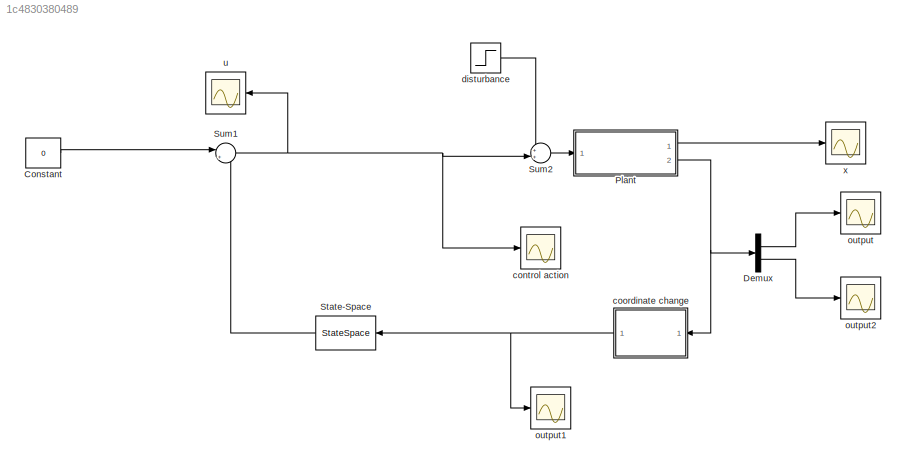
MODEL slx_1c4830380489
KIND model
CONFIG AbsTol = auto
CONFIG EnableMultiTasking = off
CONFIG FixedStep = auto
CONFIG MaxStep = auto
CONFIG MinStep = auto
CONFIG RelTol = 1e-3
CONFIG SampleTimeConstraint = Unconstrained
CONFIG Solver = VariableStepAuto
CONFIG SolverName = VariableStepAuto
CONFIG StartTime = 0.0
CONFIG StopTime = 10
BLOCK [Constant] Constant
  Value = 0
BLOCK [Demux] Demux
  DisplayOption = bar
  Outputs = 2
  Ports = [1, 2]
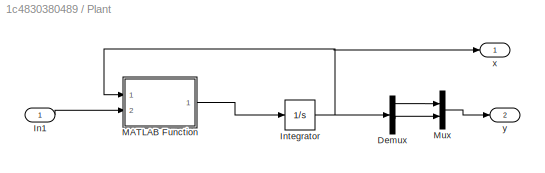
BLOCK [SubSystem] Plant
  Ports = [1, 2]
  RequestExecContextInheritance = off
  Variant = off
BLOCK [Demux] Plant/Demux
  DisplayOption = bar
  Ports = [1, 4]
BLOCK [Inport] Plant/In1
  IconDisplay = Port number
BLOCK [Integrator] Plant/Integrator
  InitialCondition = x0
  Ports = [1, 1]
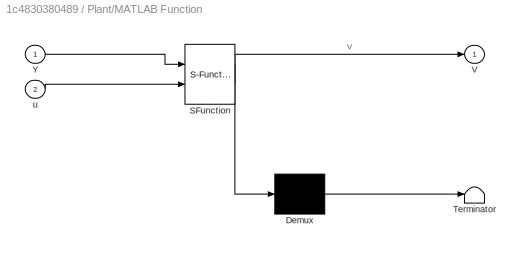
BLOCK [SubSystem] Plant/MATLAB Function
  ErrorFcn = Stateflow.Translate.translate
  PermitHierarchicalResolution = ExplicitOnly
  Ports = [2, 1]
  RequestExecContextInheritance = off
  SFBlockType = MATLAB Function
  TreatAsAtomicUnit = on
  Variant = off
BLOCK [Demux] Plant/MATLAB Function/ Demux 
  Outputs = 1
  Ports = [1, 1]
BLOCK [S-Function] Plant/MATLAB Function/ SFunction 
  EnableBusSupport = on
  FunctionName = sf_sfun
  PortCounts = [2 2]
  Ports = [2, 2]
  SFcnIsStateOwnerBlock = off
  SFunctionDeploymentMode = off
  Tag = Stateflow S-Function hinfcontroller2 2
BLOCK [Terminator] Plant/MATLAB Function/ Terminator 
BLOCK [Outport] Plant/MATLAB Function/V
  IconDisplay = Port number
BLOCK [Inport] Plant/MATLAB Function/Y
  IconDisplay = Port number
BLOCK [Inport] Plant/MATLAB Function/u
  IconDisplay = Port number
  Port = 2
BLOCK [Mux] Plant/Mux
  DisplayOption = bar
  Inputs = 2
  Ports = [2, 1]
BLOCK [Outport] Plant/x
  IconDisplay = Port number
BLOCK [Outport] Plant/y
  IconDisplay = Port number
  Port = 2
BLOCK [StateSpace] State-Space
  A = Ak
  B = Bk
  C = Ck
  D = Dk
  Ports = [1, 1]
  X0 = 0
BLOCK [Sum] Sum1
  IconShape = round
  InputSameDT = off
  Inputs = |+-
  OutDataTypeStr = Inherit: Inherit via internal rule
  Ports = [2, 1]
  SaturateOnIntegerOverflow = off
BLOCK [Sum] Sum2
  IconShape = round
  InputSameDT = off
  Inputs = ++|
  OutDataTypeStr = Inherit: Inherit via internal rule
  Ports = [2, 1]
  SaturateOnIntegerOverflow = off
BLOCK [Scope] control action
  NumInputPorts = 1
  Ports = [1]
  ScopeSpecificationString = Simulink.scopes.TimeScopeBlockCfg('CurrentConfiguration', extmgr.ConfigurationSet(extmgr.Configuration('Core','General UI',true),extmgr.Configuration('Core','Source UI',true),extmgr.Configuration('Sources','WiredSimulink',true,'DataLoggingVariableName','ScopeData2'),extmgr.Configuration('Visuals','Time Domain',true,'SerializedDisplays',{struct('MinYLimReal','-1.12956','MaxYLimReal','1.89218','YLab...<+1463ch>
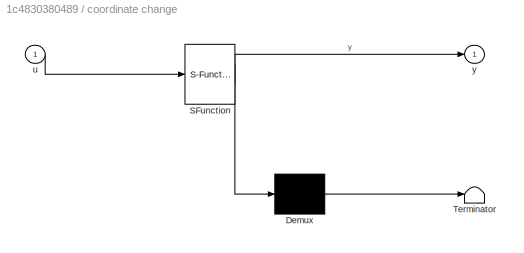
BLOCK [SubSystem] coordinate change
  ErrorFcn = Stateflow.Translate.translate
  PermitHierarchicalResolution = ExplicitOnly
  Ports = [1, 1]
  RequestExecContextInheritance = off
  SFBlockType = MATLAB Function
  TreatAsAtomicUnit = on
  Variant = off
BLOCK [Demux] coordinate change/ Demux 
  Outputs = 1
  Ports = [1, 1]
BLOCK [S-Function] coordinate change/ SFunction 
  EnableBusSupport = on
  FunctionName = sf_sfun
  PortCounts = [1 2]
  Ports = [1, 2]
  SFcnIsStateOwnerBlock = off
  SFunctionDeploymentMode = off
  Tag = Stateflow S-Function hinfcontroller2 1
BLOCK [Terminator] coordinate change/ Terminator 
BLOCK [Inport] coordinate change/u
  IconDisplay = Port number
BLOCK [Outport] coordinate change/y
  IconDisplay = Port number
BLOCK [Step] disturbance
  After = 0
  SampleTime = 0
  Time = 5
BLOCK [Scope] output
  NumInputPorts = 1
  Ports = [1]
  ScopeSpecificationString = Simulink.scopes.TimeScopeBlockCfg('CurrentConfiguration', extmgr.ConfigurationSet(extmgr.Configuration('Core','General UI',true),extmgr.Configuration('Core','Source UI',true),extmgr.Configuration('Sources','WiredSimulink',true,'DataLoggingVariableName','ScopeData5'),extmgr.Configuration('Visuals','Time Domain',true,'SerializedDisplays',{struct('MinYLimReal','-1.96306','MaxYLimReal','-1.18201','YLa...<+1466ch>
BLOCK [Scope] output1
  NumInputPorts = 1
  Ports = [1]
  ScopeSpecificationString = Simulink.scopes.TimeScopeBlockCfg('CurrentConfiguration', extmgr.ConfigurationSet(extmgr.Configuration('Core','General UI',true),extmgr.Configuration('Core','Source UI',true),extmgr.Configuration('Sources','WiredSimulink',true,'DataLoggingVariableName','ScopeData1'),extmgr.Configuration('Visuals','Time Domain',true,'SerializedDisplays',{struct('MinYLimReal','-0.41744','MaxYLimReal','0.61534','YLab...<+1498ch>
BLOCK [Scope] output2
  NumInputPorts = 1
  Ports = [1]
  ScopeSpecificationString = Simulink.scopes.TimeScopeBlockCfg('CurrentConfiguration', extmgr.ConfigurationSet(extmgr.Configuration('Core','General UI',true),extmgr.Configuration('Core','Source UI',true),extmgr.Configuration('Sources','WiredSimulink',true),extmgr.Configuration('Visuals','Time Domain',true,'SerializedDisplays',{struct('MinYLimReal','-1.62804','MaxYLimReal','-1.02834','YLabelReal','','MinYLimMag','0.00000','Max...<+1428ch>
BLOCK [Scope] u
  NumInputPorts = 1
  Ports = [1]
  ScopeSpecificationString = Simulink.scopes.TimeScopeBlockCfg('CurrentConfiguration', extmgr.ConfigurationSet(extmgr.Configuration('Core','General UI',true),extmgr.Configuration('Core','Source UI',true),extmgr.Configuration('Sources','WiredSimulink',true,'DataLoggingVariableName','ScopeData6'),extmgr.Configuration('Visuals','Time Domain',true,'SerializedDisplays',{struct('MinYLimReal','-0.23556','MaxYLimReal','1.04906','YLab...<+1461ch>
BLOCK [Scope] x
  NumInputPorts = 1
  Ports = [1]
  ScopeSpecificationString = Simulink.scopes.TimeScopeBlockCfg('CurrentConfiguration', extmgr.ConfigurationSet(extmgr.Configuration('Core','General UI',true),extmgr.Configuration('Core','Source UI',true),extmgr.Configuration('Sources','WiredSimulink',true,'DataLoggingVariableName','ScopeData7'),extmgr.Configuration('Visuals','Time Domain',true,'SerializedDisplays',{struct('MinYLimReal','-17.41491','MaxYLimReal','14.21982','YL...<+1508ch>
LINE Constant:1 -> Sum1:1
LINE Demux:1 -> output:1
LINE Demux:2 -> output2:1
LINE Plant/Demux:1 -> Plant/Mux:1
LINE Plant/Demux:3 -> Plant/Mux:2
LINE Plant/In1:1 -> Plant/MATLAB Function:2
NET Plant/Integrator:1 -> Plant/Demux:1, Plant/MATLAB Function:1, Plant/x:1
LINE Plant/MATLAB Function:1 -> Plant/Integrator:1
LINE Plant/Mux:1 -> Plant/y:1
LINE Plant:1 -> x:1
NET Plant:2 -> Demux:1, coordinate change:1
LINE State-Space:1 -> Sum1:2
NET Sum1:1 -> Sum2:2, control action:1, u:1
LINE Sum2:1 -> Plant:1
NET coordinate change:1 -> State-Space:1, output1:1
LINE disturbance:1 -> Sum2:1
note: NET lines group one-source signal fan-out (src -> all destinations, sorted); 1:1 wires keep LINE
CHART coordinate change states=1 transitions=1
  STATE_LABEL 'eML_blk_kernel()'
  STATE_LABEL 'SCRIPT:\nfunction y = fcn(u)\n\ny = u + 0.5*pi;\n'
CHART Plant/MATLAB Function states=1 transitions=1
  STATE_LABEL 'eML_blk_kernel()'
  STATE_LABEL 'SCRIPT:\nfunction V = M(Y,u)\n%M\n%    V = M(Y,U)\n\n%    This function was generated by the Symbolic Math Toolbox version 8.0.\n%    09-May-2018 10:56:52\n\nt3 = Y(1);\nt4 = Y(3);\nt5 = t3-t4;\nt2 = cos(t5);\nt6 = t2.^2;\nt7 = t6.*7.29e-8;\nt8 = t7-8.854411999999999e-6;\nt9 = 1.0./t8;\nt10 = Y(2);\nt11 = Y(4);\nt12 = cos(t4);\nt13 = cos(t3);\nt14 = sin(t5);\nt15 = t10.^2;\nt16 = t3.*2.0;\nt17 = t4.*-2.0+t16;\nt18 = sin(...<+371ch>'
